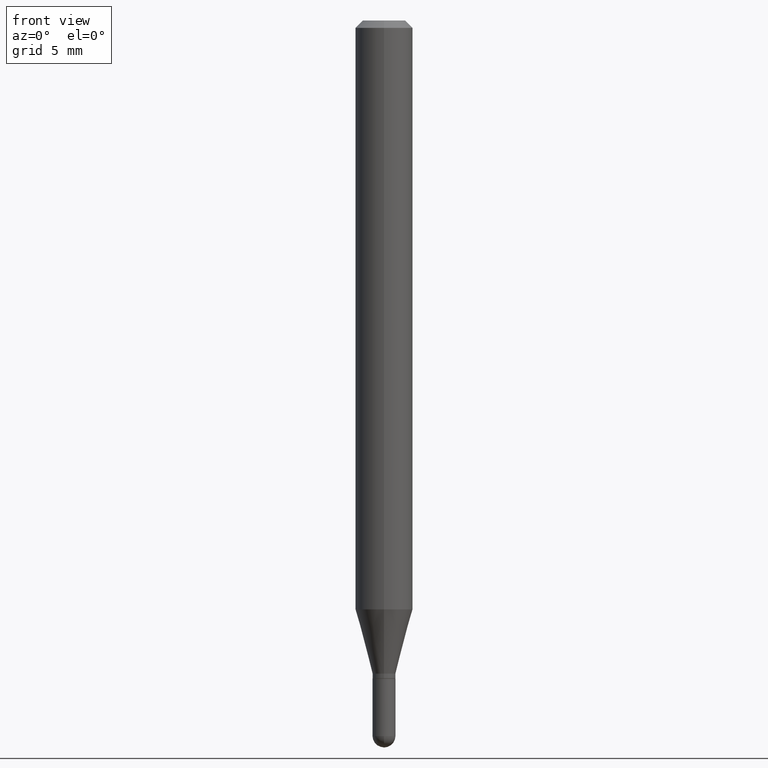
[diagram: clean part render]
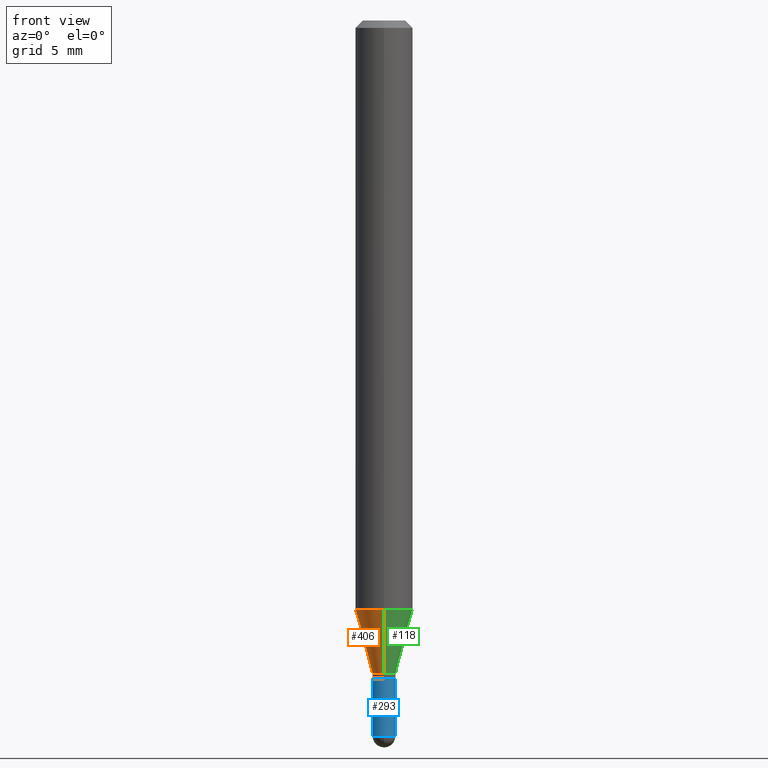
[diagram: same view with three faces highlighted in distinct colors, each labeled with its STEP entity id]
A machine part, front view with three faces highlighted in distinct colors.
Their STEP definitions:

[orange] entity #406 — the highlighted conical surface has half-angle 15 deg.
#15 = DIRECTION ( 'NONE',  ( -2.445403612835548349E-29, 3.491574699430331194E-15, 1.000000000000000000 ) ) ;
#17 = EDGE_CURVE ( 'NONE', #465, #148, #30, .T. ) ;
#20 = CARTESIAN_POINT ( 'NONE',  ( -1.647979191933643482E-16, -0.02360000000000488443, -1.344100000000000072 ) ) ;
#30 = LINE ( 'NONE', #184, #65 ) ;
#49 = DIRECTION ( 'NONE',  ( -6.982962677686265922E-15, -1.000000000000000000, 4.626330217890369336E-15 ) ) ;
#54 = CARTESIAN_POINT ( 'NONE',  ( -1.647979191933643482E-16, -0.02360000000000488443, -1.344100000000000072 ) ) ;
#65 = VECTOR ( 'NONE', #504, 39.37007874015748143 ) ;
#81 = FACE_OUTER_BOUND ( 'NONE', #230, .T. ) ;
#112 = ORIENTED_EDGE ( 'NONE', *, *, #246, .T. ) ;
#138 = CARTESIAN_POINT ( 'NONE',  ( -4.123439461173444997E-16, -0.05905000000000425187, -1.211798798871684513 ) ) ;
#148 = VERTEX_POINT ( 'NONE', #309 ) ;
#176 = DIRECTION ( 'NONE',  ( -1.807323732225332900E-15, -0.2588190451025185190, 0.9659258262890689783 ) ) ;
#184 = CARTESIAN_POINT ( 'NONE',  ( 1.676880856394178568E-16, 0.02359999999999550305, -1.344100000000000072 ) ) ;
#194 = CARTESIAN_POINT ( 'NONE',  ( 3.286866996012259774E-29, -4.693025553504308353E-15, -1.344100000000000072 ) ) ;
#209 = CIRCLE ( 'NONE', #296, 0.05904999999999999832 ) ;
#214 = CARTESIAN_POINT ( 'NONE',  ( 2.963337160790595870E-29, -4.231086026940438295E-15, -1.211798798871684735 ) ) ;
#228 = VERTEX_POINT ( 'NONE', #54 ) ;
#230 = EDGE_LOOP ( 'NONE', ( #383, #112, #260, #292 ) ) ;
#242 = DIRECTION ( 'NONE',  ( -6.982962677686265922E-15, -1.000000000000000000, 0.000000000000000000 ) ) ;
#246 = EDGE_CURVE ( 'NONE', #465, #228, #347, .T. ) ;
#257 = EDGE_CURVE ( 'NONE', #148, #340, #209, .T. ) ;
#260 = ORIENTED_EDGE ( 'NONE', *, *, #333, .T. ) ;
#292 = ORIENTED_EDGE ( 'NONE', *, *, #257, .F. ) ;
#296 = AXIS2_PLACEMENT_3D ( 'NONE', #214, #327, #49 ) ;
#303 = AXIS2_PLACEMENT_3D ( 'NONE', #374, #15, #445 ) ;
#309 = CARTESIAN_POINT ( 'NONE',  ( 4.195754854663685822E-16, 0.05904999999999573784, -1.211798798871684735 ) ) ;
#316 = CARTESIAN_POINT ( 'NONE',  ( 2.936317855528934537E-16, 0.02359999999999549958, -1.344100000000000072 ) ) ;
#327 = DIRECTION ( 'NONE',  ( -2.445403612835548349E-29, 3.491574699430331194E-15, 1.000000000000000000 ) ) ;
#330 = CONICAL_SURFACE ( 'NONE', #397, 0.02360000000000019374, 0.2617993877991506291 ) ;
#333 = EDGE_CURVE ( 'NONE', #228, #340, #378, .T. ) ;
#340 = VERTEX_POINT ( 'NONE', #138 ) ;
#347 = CIRCLE ( 'NONE', #303, 0.02360000000000019374 ) ;
#369 = VECTOR ( 'NONE', #176, 39.37007874015748854 ) ;
#374 = CARTESIAN_POINT ( 'NONE',  ( 3.286866996012259774E-29, -4.693025553504308353E-15, -1.344100000000000072 ) ) ;
#378 = LINE ( 'NONE', #20, #369 ) ;
#383 = ORIENTED_EDGE ( 'NONE', *, *, #17, .F. ) ;
#397 = AXIS2_PLACEMENT_3D ( 'NONE', #194, #511, #242 ) ;
#406 = ADVANCED_FACE ( 'NONE', ( #81 ), #330, .T. ) ;
#445 = DIRECTION ( 'NONE',  ( -6.982962677686265922E-15, -1.000000000000000000, 0.000000000000000000 ) ) ;
#465 = VERTEX_POINT ( 'NONE', #316 ) ;
#504 = DIRECTION ( 'NONE',  ( 1.839019923739602682E-15, 0.2588190451025252914, 0.9659258262890670910 ) ) ;
#511 = DIRECTION ( 'NONE',  ( -2.445403612835548349E-29, 3.491574699430331194E-15, 1.000000000000000000 ) ) ;

[blue] entity #293 — the highlighted cylindrical surface (edge-blend (fillet) strip) has radius 0.5994 mm, axis along (-0, 0, 1).
#2 = EDGE_CURVE ( 'NONE', #177, #430, #26, .T. ) ;
#10 = CYLINDRICAL_SURFACE ( 'NONE', #27, 0.02359999999999999598 ) ;
#12 = CIRCLE ( 'NONE', #217, 0.02359999999999999598 ) ;
#25 = VERTEX_POINT ( 'NONE', #298 ) ;
#26 = LINE ( 'NONE', #389, #477 ) ;
#27 = AXIS2_PLACEMENT_3D ( 'NONE', #247, #171, #208 ) ;
#43 = CARTESIAN_POINT ( 'NONE',  ( 3.312142951097148704E-29, -4.728862325329155827E-15, -1.354399999999999826 ) ) ;
#47 = DIRECTION ( 'NONE',  ( -2.445468806185136877E-29, 3.491481338843145188E-15, 1.000000000000000000 ) ) ;
#51 = DIRECTION ( 'NONE',  ( -2.445468806185136597E-29, 3.491481338843145583E-15, 1.000000000000000000 ) ) ;
#71 = ORIENTED_EDGE ( 'NONE', *, *, #2, .F. ) ;
#79 = DIRECTION ( 'NONE',  ( -2.445468806185136597E-29, 3.491481338843145583E-15, 1.000000000000000000 ) ) ;
#100 = DIRECTION ( 'NONE',  ( -2.445468806185136877E-29, 3.491481338843145188E-15, 1.000000000000000000 ) ) ;
#103 = ORIENTED_EDGE ( 'NONE', *, *, #372, .F. ) ;
#140 = ORIENTED_EDGE ( 'NONE', *, *, #490, .T. ) ;
#157 = CARTESIAN_POINT ( 'NONE',  ( -1.647979191933598616E-16, -0.02360000000000513770, -1.472499999999999698 ) ) ;
#169 = CARTESIAN_POINT ( 'NONE',  ( 0.02359999999999999598, -5.099832217581239141E-15, -1.472499999999999698 ) ) ;
#171 = DIRECTION ( 'NONE',  ( -2.445468806185136597E-29, 3.491481338843145583E-15, 1.000000000000000000 ) ) ;
#174 = VERTEX_POINT ( 'NONE', #157 ) ;
#177 = VERTEX_POINT ( 'NONE', #312 ) ;
#180 = ORIENTED_EDGE ( 'NONE', *, *, #207, .T. ) ;
#188 = VERTEX_POINT ( 'NONE', #169 ) ;
#190 = CARTESIAN_POINT ( 'NONE',  ( -0.02360000000000000292, -4.767346212748459573E-15, -1.354399999999999826 ) ) ;
#207 = EDGE_CURVE ( 'NONE', #174, #188, #12, .T. ) ;
#208 = DIRECTION ( 'NONE',  ( 1.000000000000000000, -6.982962677686267499E-15, 4.876176775795935793E-29 ) ) ;
#211 = DIRECTION ( 'NONE',  ( 1.000000000000000000, -6.982962677686259611E-15, 0.000000000000000000 ) ) ;
#217 = AXIS2_PLACEMENT_3D ( 'NONE', #411, #51, #211 ) ;
#218 = AXIS2_PLACEMENT_3D ( 'NONE', #357, #231, #308 ) ;
#220 = ORIENTED_EDGE ( 'NONE', *, *, #394, .T. ) ;
#231 = DIRECTION ( 'NONE',  ( -2.445468806185136597E-29, 3.491481338843145583E-15, 1.000000000000000000 ) ) ;
#247 = CARTESIAN_POINT ( 'NONE',  ( 0.000000000000000000, 0.000000000000000000, 0.000000000000000000 ) ) ;
#250 = CIRCLE ( 'NONE', #403, 0.02360000000000000292 ) ;
#280 = VECTOR ( 'NONE', #47, 39.37007874015748143 ) ;
#281 = FACE_OUTER_BOUND ( 'NONE', #390, .T. ) ;
#293 = ADVANCED_FACE ( 'NONE', ( #281 ), #10, .T. ) ;
#298 = CARTESIAN_POINT ( 'NONE',  ( 0.02360000000000000292, -4.893660244522551286E-15, -1.354399999999999826 ) ) ;
#308 = DIRECTION ( 'NONE',  ( 1.000000000000000000, -6.982962677686259611E-15, 0.000000000000000000 ) ) ;
#312 = CARTESIAN_POINT ( 'NONE',  ( -0.02359999999999999598, -4.767346212748459573E-15, -1.472499999999999698 ) ) ;
#319 = CARTESIAN_POINT ( 'NONE',  ( 0.02359999999999999598, -1.647979191933958780E-16, 1.150777719087840605E-30 ) ) ;
#357 = CARTESIAN_POINT ( 'NONE',  ( 3.600952817107612585E-29, -5.141206271446529958E-15, -1.472499999999999698 ) ) ;
#372 = EDGE_CURVE ( 'NONE', #430, #25, #250, .T. ) ;
#388 = DIRECTION ( 'NONE',  ( 1.000000000000000000, -6.982962677686258033E-15, 0.000000000000000000 ) ) ;
#389 = CARTESIAN_POINT ( 'NONE',  ( -0.02359999999999999598, 1.676880856393836153E-16, -1.160868681300157628E-30 ) ) ;
#390 = EDGE_LOOP ( 'NONE', ( #71, #220, #180, #140, #103 ) ) ;
#394 = EDGE_CURVE ( 'NONE', #177, #174, #508, .T. ) ;
#403 = AXIS2_PLACEMENT_3D ( 'NONE', #43, #79, #388 ) ;
#411 = CARTESIAN_POINT ( 'NONE',  ( 3.600952817107612585E-29, -5.141206271446529958E-15, -1.472499999999999698 ) ) ;
#430 = VERTEX_POINT ( 'NONE', #190 ) ;
#440 = LINE ( 'NONE', #319, #280 ) ;
#477 = VECTOR ( 'NONE', #100, 39.37007874015748143 ) ;
#490 = EDGE_CURVE ( 'NONE', #188, #25, #440, .T. ) ;
#508 = CIRCLE ( 'NONE', #218, 0.02359999999999999598 ) ;

[green] entity #118 — the highlighted conical surface has half-angle 15 deg.
#17 = EDGE_CURVE ( 'NONE', #465, #148, #30, .T. ) ;
#19 = AXIS2_PLACEMENT_3D ( 'NONE', #192, #346, #439 ) ;
#20 = CARTESIAN_POINT ( 'NONE',  ( -1.647979191933643482E-16, -0.02360000000000488443, -1.344100000000000072 ) ) ;
#30 = LINE ( 'NONE', #184, #65 ) ;
#34 = EDGE_CURVE ( 'NONE', #340, #148, #321, .T. ) ;
#54 = CARTESIAN_POINT ( 'NONE',  ( -1.647979191933643482E-16, -0.02360000000000488443, -1.344100000000000072 ) ) ;
#58 = DIRECTION ( 'NONE',  ( -6.982962677686265922E-15, -1.000000000000000000, 0.000000000000000000 ) ) ;
#59 = EDGE_CURVE ( 'NONE', #228, #465, #98, .T. ) ;
#61 = CARTESIAN_POINT ( 'NONE',  ( 3.286866996012259774E-29, -4.693025553504308353E-15, -1.344100000000000072 ) ) ;
#65 = VECTOR ( 'NONE', #504, 39.37007874015748143 ) ;
#98 = CIRCLE ( 'NONE', #275, 0.02360000000000019374 ) ;
#118 = ADVANCED_FACE ( 'NONE', ( #442 ), #483, .T. ) ;
#137 = ORIENTED_EDGE ( 'NONE', *, *, #59, .T. ) ;
#138 = CARTESIAN_POINT ( 'NONE',  ( -4.123439461173444997E-16, -0.05905000000000425187, -1.211798798871684513 ) ) ;
#148 = VERTEX_POINT ( 'NONE', #309 ) ;
#176 = DIRECTION ( 'NONE',  ( -1.807323732225332900E-15, -0.2588190451025185190, 0.9659258262890689783 ) ) ;
#184 = CARTESIAN_POINT ( 'NONE',  ( 1.676880856394178568E-16, 0.02359999999999550305, -1.344100000000000072 ) ) ;
#192 = CARTESIAN_POINT ( 'NONE',  ( 3.286866996012259774E-29, -4.693025553504308353E-15, -1.344100000000000072 ) ) ;
#219 = CARTESIAN_POINT ( 'NONE',  ( 2.963337160790595870E-29, -4.231086026940438295E-15, -1.211798798871684735 ) ) ;
#228 = VERTEX_POINT ( 'NONE', #54 ) ;
#275 = AXIS2_PLACEMENT_3D ( 'NONE', #61, #413, #58 ) ;
#304 = ORIENTED_EDGE ( 'NONE', *, *, #333, .F. ) ;
#309 = CARTESIAN_POINT ( 'NONE',  ( 4.195754854663685822E-16, 0.05904999999999573784, -1.211798798871684735 ) ) ;
#316 = CARTESIAN_POINT ( 'NONE',  ( 2.936317855528934537E-16, 0.02359999999999549958, -1.344100000000000072 ) ) ;
#321 = CIRCLE ( 'NONE', #423, 0.05904999999999999832 ) ;
#333 = EDGE_CURVE ( 'NONE', #228, #340, #378, .T. ) ;
#337 = DIRECTION ( 'NONE',  ( -6.982962677686265922E-15, -1.000000000000000000, 4.626330217890369336E-15 ) ) ;
#340 = VERTEX_POINT ( 'NONE', #138 ) ;
#346 = DIRECTION ( 'NONE',  ( -2.445403612835548349E-29, 3.491574699430331194E-15, 1.000000000000000000 ) ) ;
#366 = ORIENTED_EDGE ( 'NONE', *, *, #34, .F. ) ;
#369 = VECTOR ( 'NONE', #176, 39.37007874015748854 ) ;
#378 = LINE ( 'NONE', #20, #369 ) ;
#413 = DIRECTION ( 'NONE',  ( -2.445403612835548349E-29, 3.491574699430331194E-15, 1.000000000000000000 ) ) ;
#421 = ORIENTED_EDGE ( 'NONE', *, *, #17, .T. ) ;
#423 = AXIS2_PLACEMENT_3D ( 'NONE', #219, #502, #337 ) ;
#439 = DIRECTION ( 'NONE',  ( -6.982962677686265922E-15, -1.000000000000000000, 0.000000000000000000 ) ) ;
#442 = FACE_OUTER_BOUND ( 'NONE', #464, .T. ) ;
#464 = EDGE_LOOP ( 'NONE', ( #137, #421, #366, #304 ) ) ;
#465 = VERTEX_POINT ( 'NONE', #316 ) ;
#483 = CONICAL_SURFACE ( 'NONE', #19, 0.02360000000000019374, 0.2617993877991506291 ) ;
#502 = DIRECTION ( 'NONE',  ( -2.445403612835548349E-29, 3.491574699430331194E-15, 1.000000000000000000 ) ) ;
#504 = DIRECTION ( 'NONE',  ( 1.839019923739602682E-15, 0.2588190451025252914, 0.9659258262890670910 ) ) ;